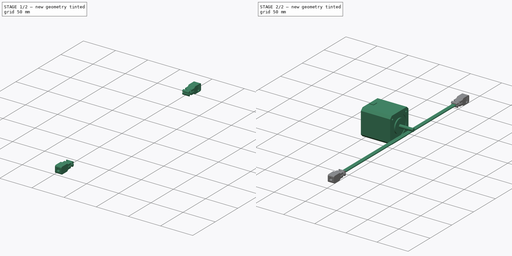
[diagram: build sequence overview — one tinted view per stage of 2, left to right]
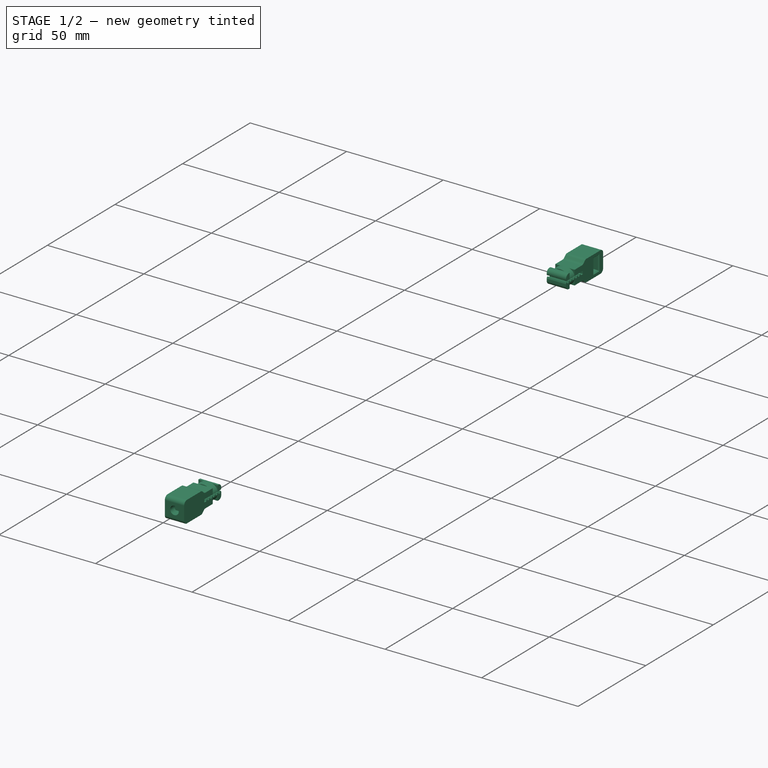
[diagram: stage 1 of 2 — iso view after this stage's code; geometry added in this stage tinted green]
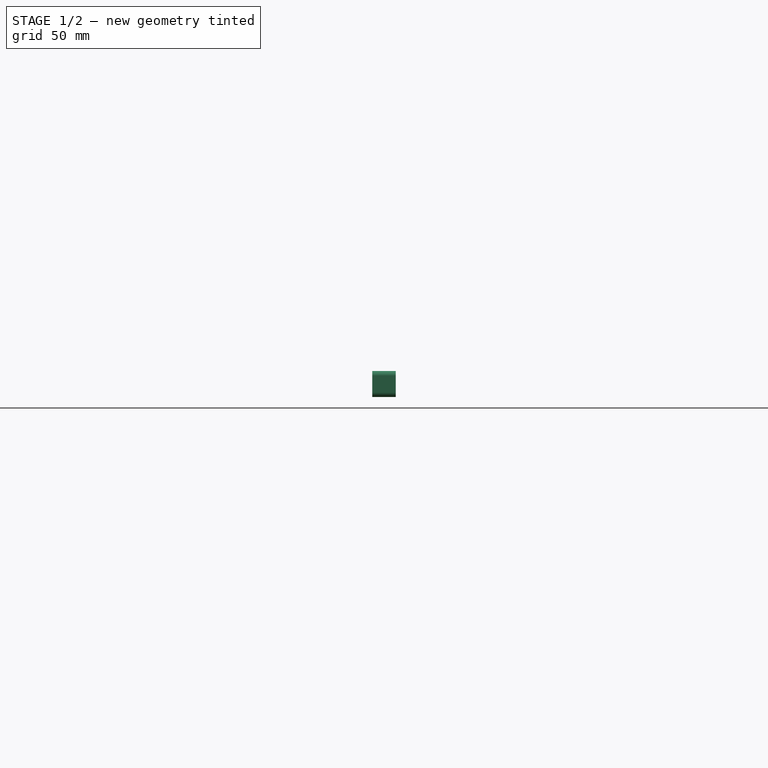
[diagram: stage 1 of 2 — front view after this stage's code; geometry added in this stage tinted green]
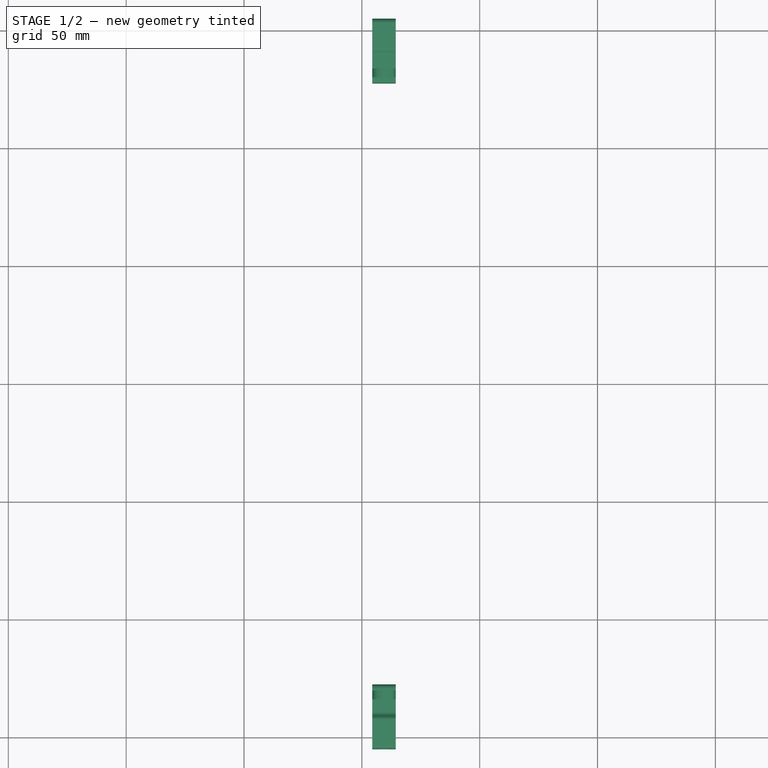
[diagram: stage 1 of 2 — top view after this stage's code; geometry added in this stage tinted green]
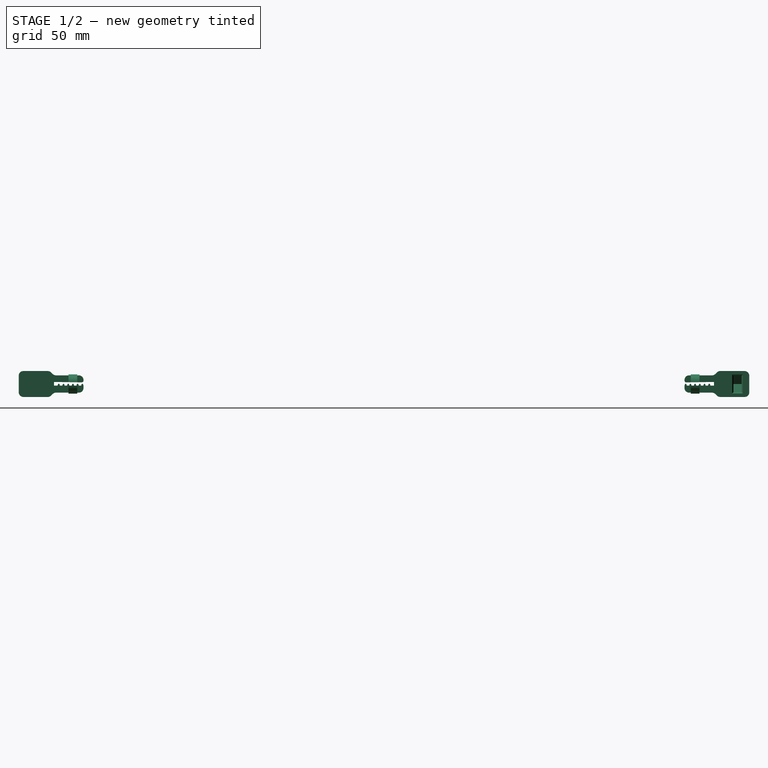
[diagram: stage 1 of 2 — right view after this stage's code; geometry added in this stage tinted green]
FCSTD DOCUMENT  (FreeCAD 0.17R13519 (Git))
Label: Zusammenbau X-Achse
License: All rights reserved
LicenseURL: http://en.wikipedia.org/wiki/All_rights_reserved
objects: Part::FeaturePython×6, Sketcher::SketchObject×1, PartDesign::Pad×1
note: 9 computed .brp shape members not serialized (recipe doc carries the construction recipe); baked Part::Feature solids carry a one-line shape summary decoded from their .brp

FEATURE [Part::FeaturePython] Belt_Tensioner_v2_01  # a2plus imported part (geometry in sourceFile) (typed FeaturePython)
  Placement = pos=(-35.6,141.25,48.571) rot=(0.57735,-0.57735,-0.57735;2.0944rad)
  fixedPosition = false
  sourceFile = <userpath>/Documents/Git Projekte/FredCNC/Belt Tensioner v2.FCStd
  timeLastImport = 1487171040
  updateColors = true
FEATURE [Part::FeaturePython] Belt_Tensioner_v2_002  # a2plus imported part (geometry in sourceFile) (typed FeaturePython)
  Placement = pos=(-45.6,-141.25,48.571) rot=(0.57735,0.57735,0.57735;2.0944rad)
  fixedPosition = false
  sourceFile = <userpath>/Documents/Git Projekte/FredCNC/Belt Tensioner v2.FCStd
  timeLastImport = 1487171040
  updateColors = true
FEATURE [Part::FeaturePython] muxedAssembly  # WARN: FeaturePython — macro-defined, semantics opaque (R4)
  ReadOnly = false
  muxedObjectList = Zusammenbau_X_Achse___Wellen_und_Halter_01 | Zusammenbau_X_Achse___Lager_und_Tisch_01 | Schrittmotor_01 | Belt_Tensioner_v2_01 | Belt_Tensioner_v2_002
  type = muxedAssembly
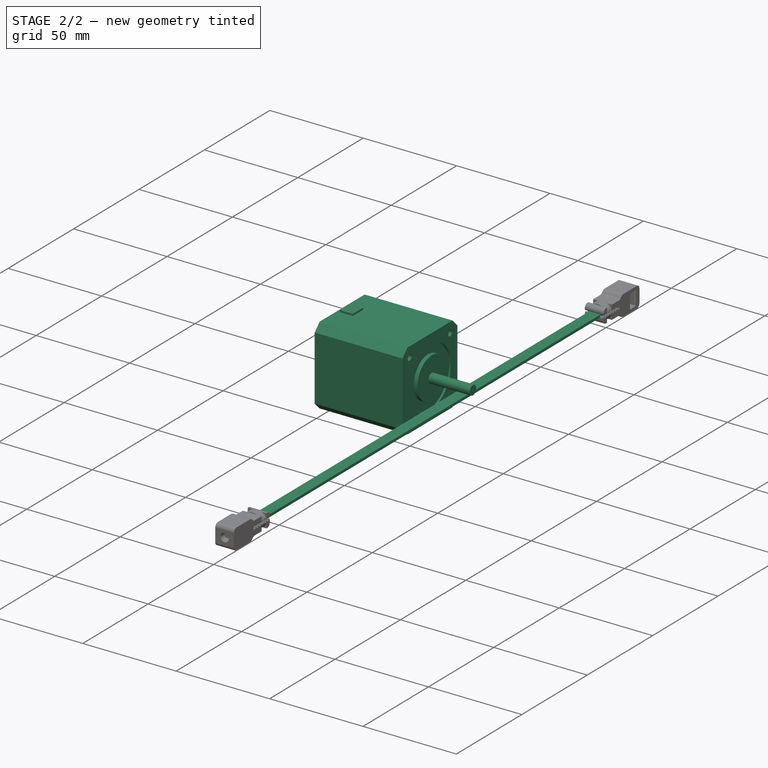
[diagram: stage 2 of 2 — iso view after this stage's code; geometry added in this stage tinted green]
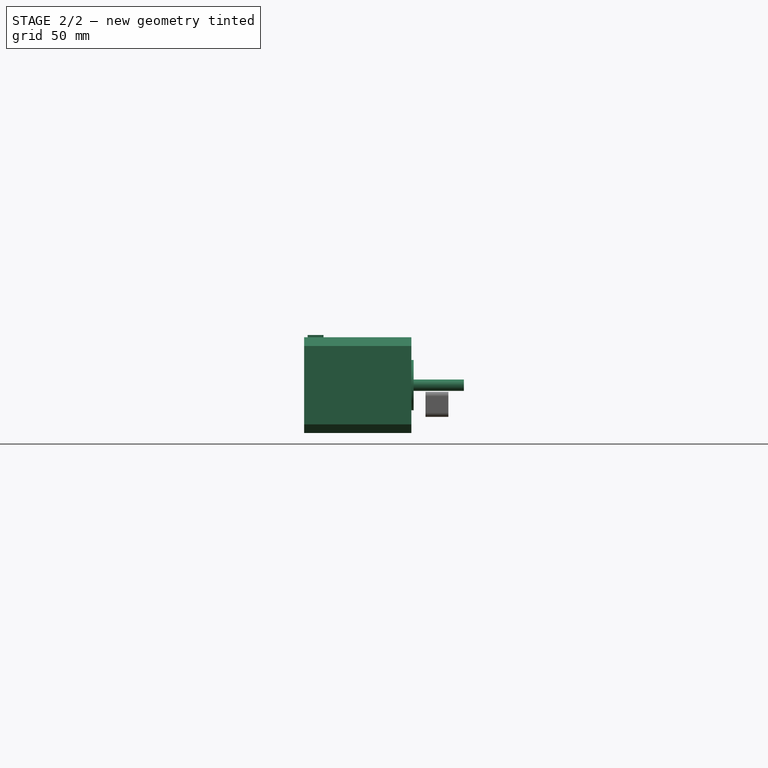
[diagram: stage 2 of 2 — front view after this stage's code; geometry added in this stage tinted green]
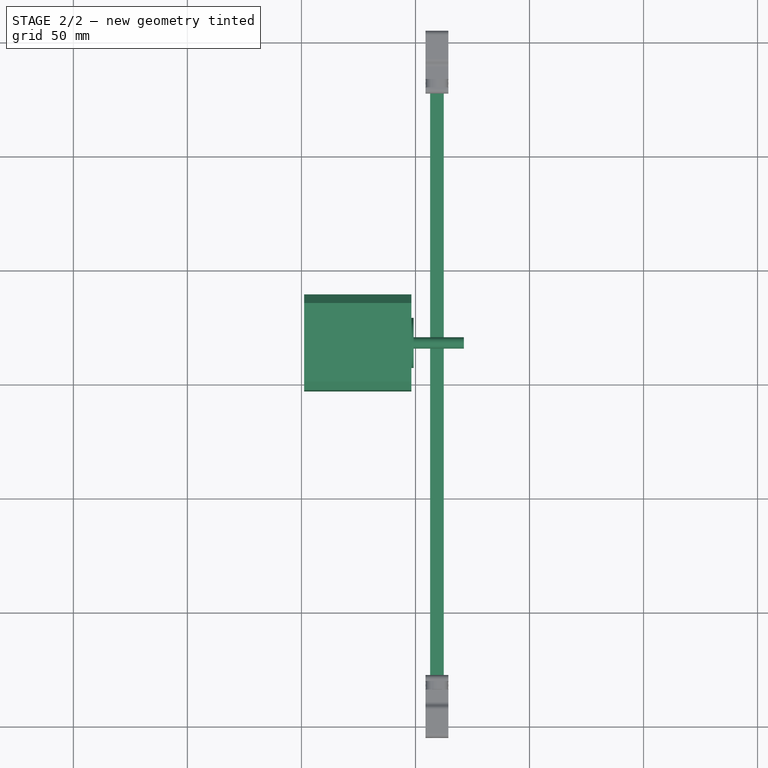
[diagram: stage 2 of 2 — top view after this stage's code; geometry added in this stage tinted green]
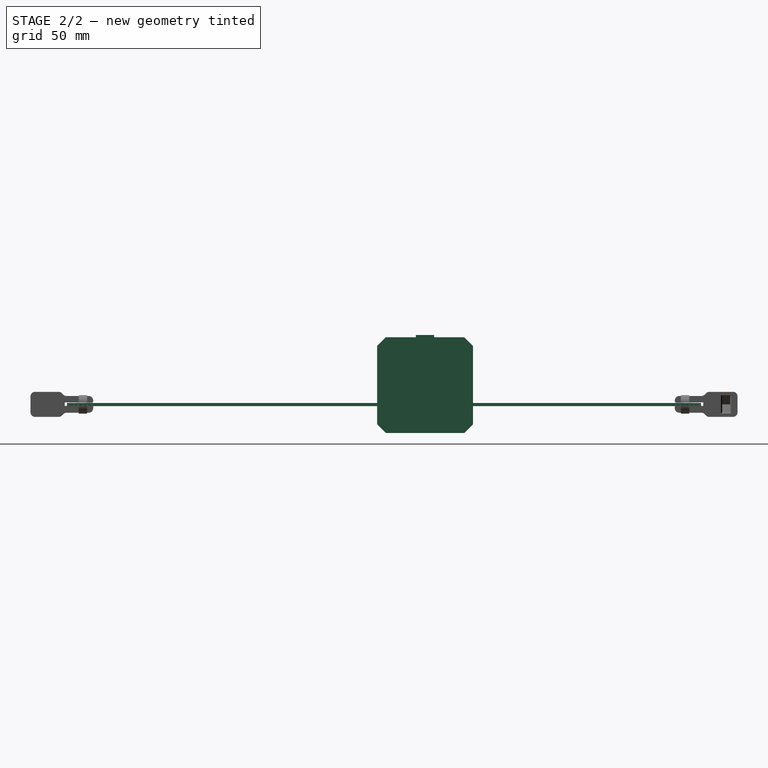
[diagram: stage 2 of 2 — right view after this stage's code; geometry added in this stage tinted green]
FEATURE [Part::FeaturePython] Zusammenbau_X_Achse___Wellen_und_Halter_01  # a2plus imported part (geometry in sourceFile) (typed FeaturePython)
  fixedPosition = true
  sourceFile = <userpath>/Documents/Git Projekte/FredCNC/Zusammenbau X-Achse - Wellen und Halter.FCStd
  timeLastImport = 1.5403e+09
  updateColors = true
FEATURE [Part::FeaturePython] Zusammenbau_X_Achse___Lager_und_Tisch_01  # a2plus imported part (geometry in sourceFile) (typed FeaturePython)
  Placement = pos=(0,18,-3) rot=(0,0,1;1.5708rad)
  fixedPosition = true
  sourceFile = <userpath>/Documents/Git Projekte/FredCNC/Zusammenbau X-Achse - Lager und Tisch.FCStd
  timeLastImport = 1.5403e+09
  updateColors = true
FEATURE [Part::FeaturePython] Schrittmotor_01  # a2plus imported part (geometry in sourceFile) (typed FeaturePython)
  Placement = pos=(-98.8,18,57) rot=(0.57735,0.57735,0.57735;2.0944rad)
  fixedPosition = false
  sourceFile = <userpath>/Documents/Git Projekte/FredCNC/Schrittmotor.FCStd
  timeLastImport = 1487171040
  updateColors = true
FEATURE [Sketcher::SketchObject] Sketch
  MapMode = 5
  Placement = pos=(0,0,0) rot=(1,0,0;1.5708rad)
  sketch-geometry (9):
    g0: LineSegment [constr] StartX=-44.6 StartY=49.176 StartZ=0 EndX=-36.6 EndY=49.176 EndZ=0
    g1: LineSegment [constr] StartX=-36.6 StartY=49.176 StartZ=0 EndX=-36.6 EndY=47.796 EndZ=0
    g2: LineSegment [constr] StartX=-36.6 StartY=47.796 StartZ=0 EndX=-44.6 EndY=47.796 EndZ=0
    g3: LineSegment [constr] StartX=-44.6 StartY=47.796 StartZ=0 EndX=-44.6 EndY=49.176 EndZ=0
    g4: LineSegment [constr] StartX=-40.6 StartY=49.176 StartZ=0 EndX=-40.6 EndY=47.796 EndZ=0
    g5: LineSegment StartX=-43.6 StartY=49.176 StartZ=0 EndX=-37.6 EndY=49.176 EndZ=0
    g6: LineSegment StartX=-37.6 StartY=49.176 StartZ=0 EndX=-37.6 EndY=47.796 EndZ=0
    g7: LineSegment StartX=-37.6 StartY=47.796 StartZ=0 EndX=-43.6 EndY=47.796 EndZ=0
    g8: LineSegment StartX=-43.6 StartY=47.796 StartZ=0 EndX=-43.6 EndY=49.176 EndZ=0
  constraints (27):
    c: Coincident(g0,g1)
    c: Coincident(g1,g2)
    c: Coincident(g2,g3)
    c: Coincident(g3,g0)
    c: Horizontal(g0)
    c: Horizontal(g2)
    c: Vertical(g1)
    c: Vertical(g3)
    c: PointOnObject(g4,g0)
    c: PointOnObject(g4,g2)
    c: Symmetric(g1,g2,g4)
    c: Coincident(g5,g6)
    c: Coincident(g6,g7)
    c: Coincident(g7,g8)
    c: Coincident(g8,g5)
    c: Horizontal(g5)
    c: Horizontal(g7)
    c: Vertical(g6)
    c: Vertical(g8)
    c: PointOnObject(g5,g0)
    c: PointOnObject(g6,g2)
    c: Symmetric(g5,g5,g4)
    c: DistanceX(g0) = 8
    c: DistanceX(g5) = 6
    c: DistanceY(g1) = -1.38
    c: DistanceX(g0) = -36.6
    c: DistanceY(g0) = 49.176
FEATURE [PartDesign::Pad] Pad  label="Belt"
  Length = 278
  Length2 = 100
  Midplane = true
  Placement = pos=(0,0,0) rot=(1,0,0;1.5708rad)
  Profile = -> Sketch
  Type = 0
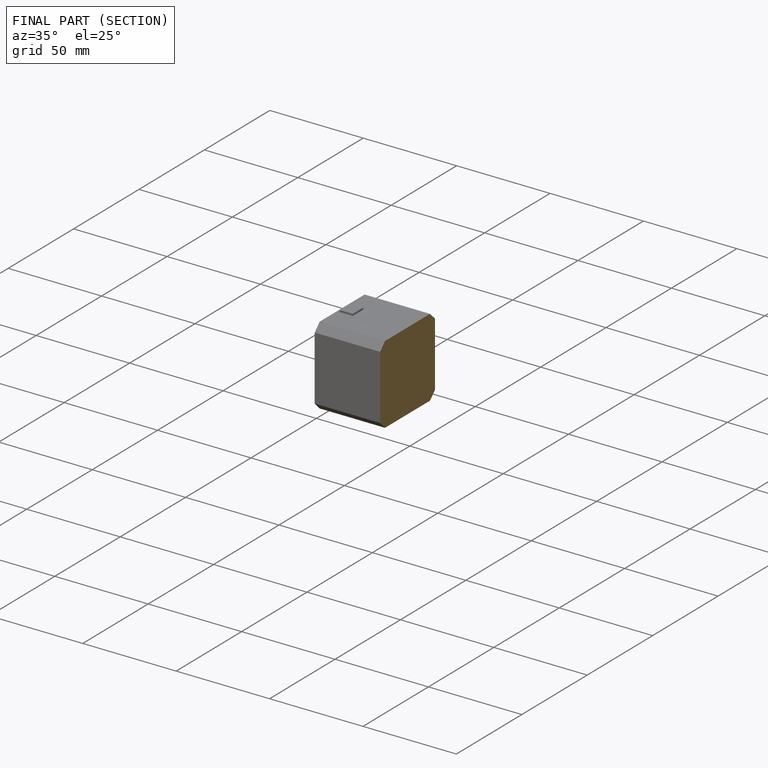
[diagram: finished part — half-section view (interior)]
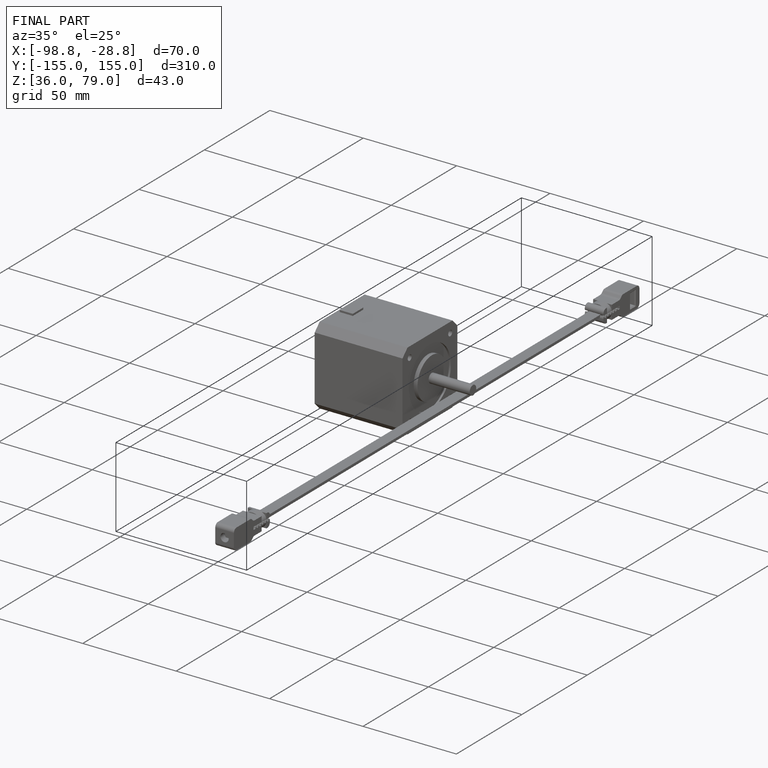
[diagram: finished part — iso view with bounding-box wireframe]
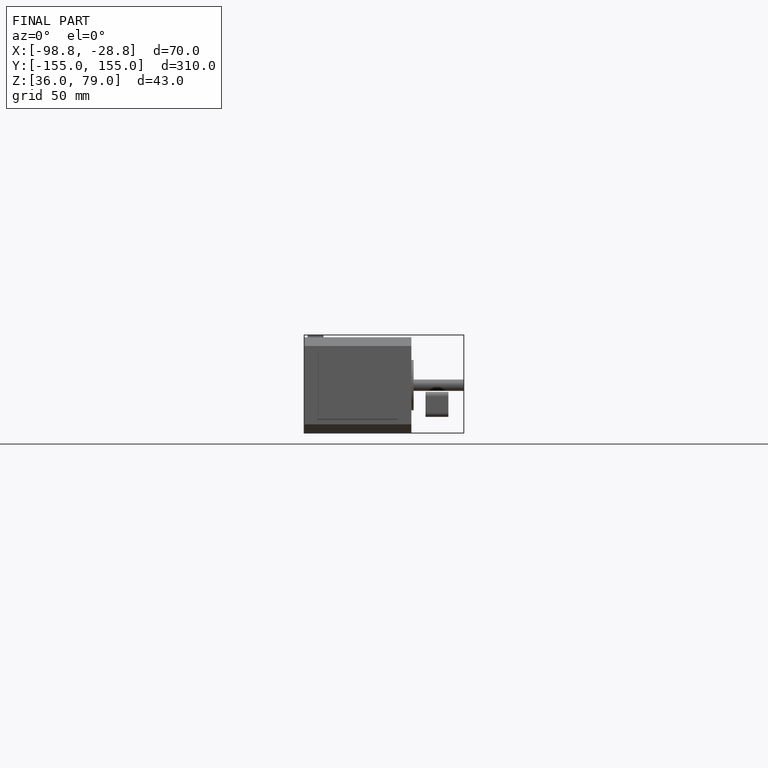
[diagram: finished part — front view with bounding-box wireframe]
